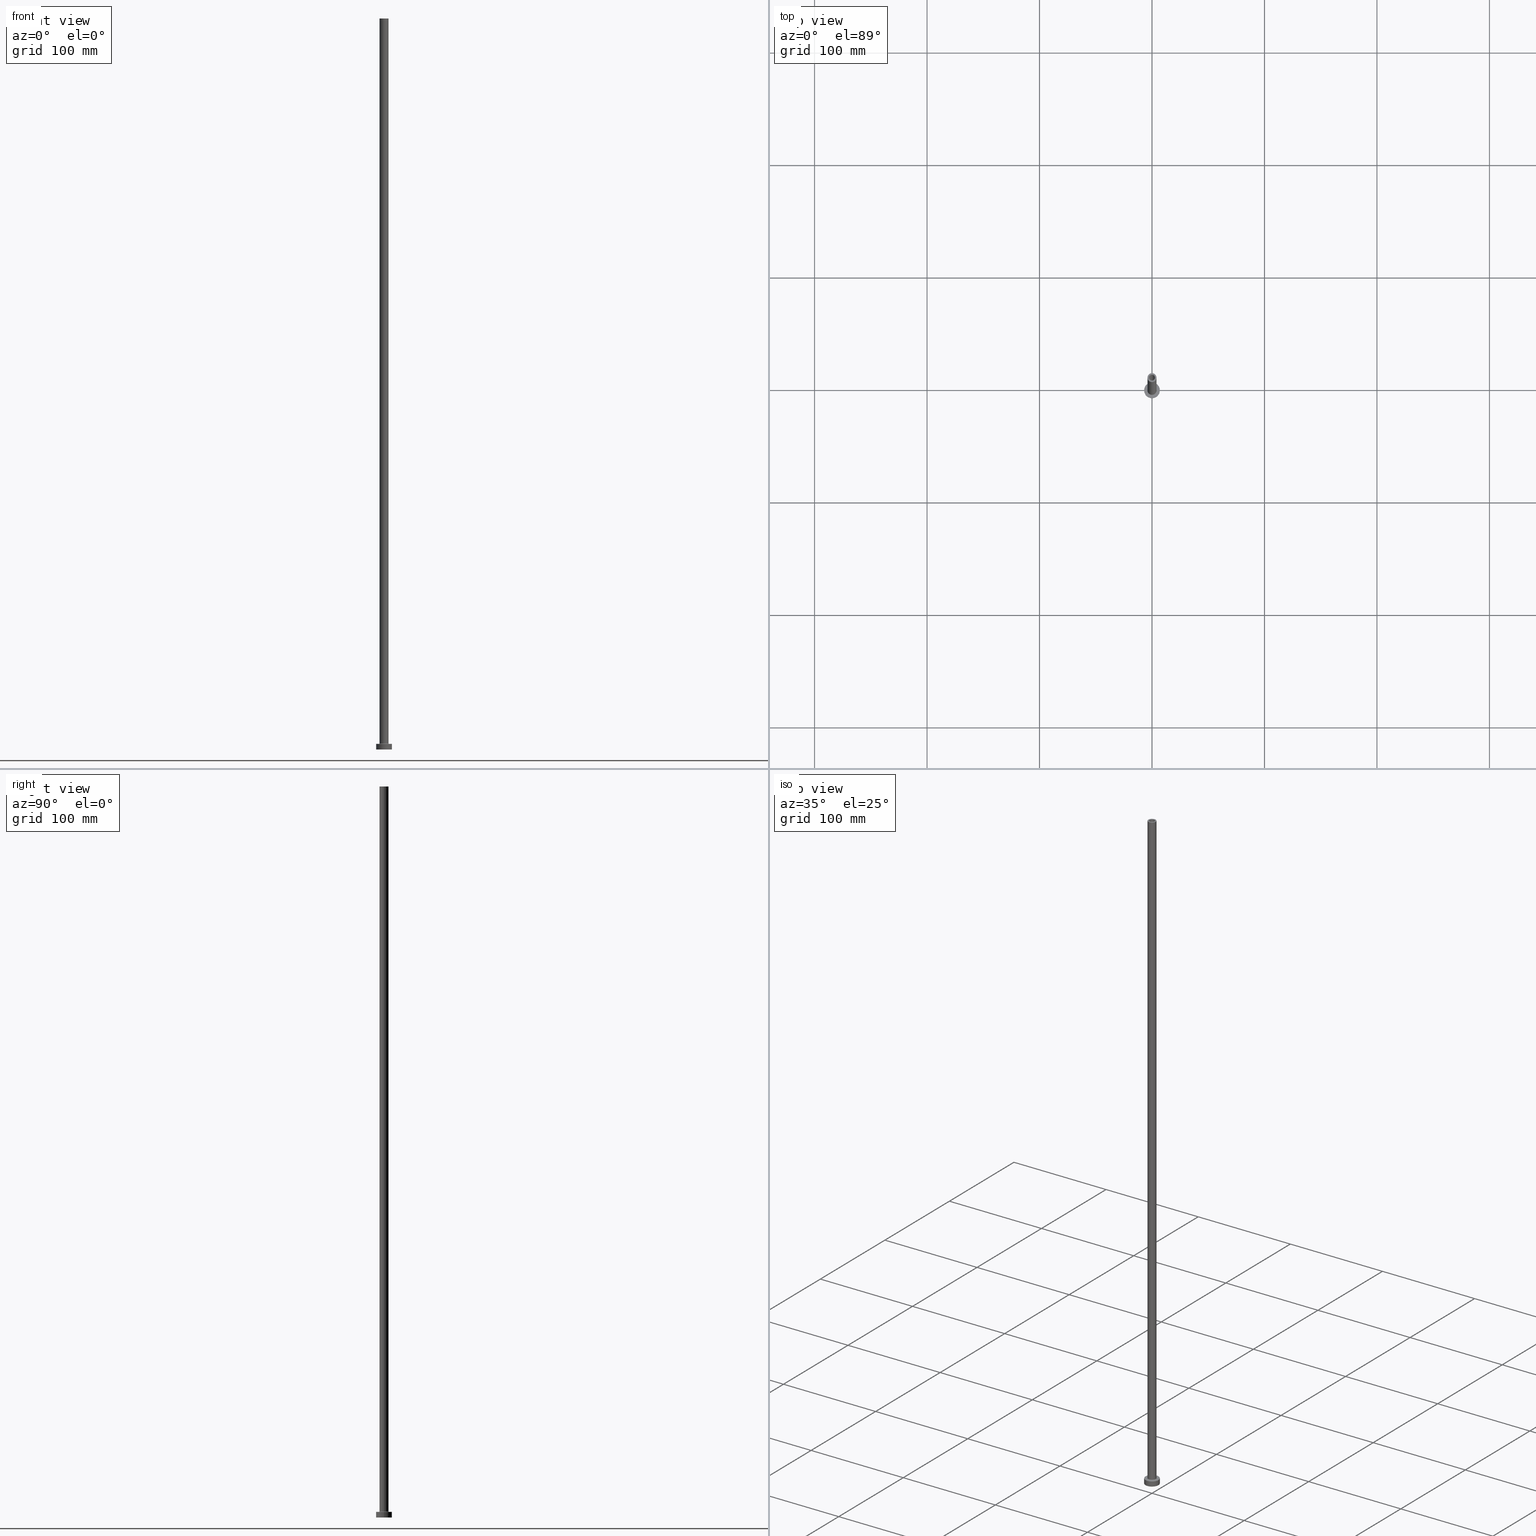
[diagram: canonical four-view strip — front | top / right | iso, engineering-drawing reading convention]
A machine part, canonical four-view strip (front | top / right | iso — engineering-drawing reading convention). The complete STEP part file that produces these views, byte-faithful:
ISO-10303-21;
HEADER;
FILE_DESCRIPTION (( 'STEP AP203' ),
    '1' );
FILE_NAME ('0d34.STEP',
    '2023-02-13T16:27:56',
    ( '' ),
    ( '' ),
    'SwSTEP 2.0',
    'SolidWorks 2019',
    '' );
FILE_SCHEMA (( 'CONFIG_CONTROL_DESIGN' ));
ENDSEC;

DATA;
#1 = CARTESIAN_POINT ( 'NONE',  ( -2.750000000000000000, 0.000000000000000000, 612.7781745930520856 ) ) ;
#2 = CARTESIAN_POINT ( 'NONE',  ( 0.000000000000000000, 0.000000000000000000, 0.000000000000000000 ) ) ;
#3 = EDGE_LOOP ( 'NONE', ( #67, #49, #71, #39 ) ) ;
#4 = CYLINDRICAL_SURFACE ( 'NONE', #251, 2.750000000000000000 ) ;
#5 = DIRECTION ( 'NONE',  ( -1.000000000000000000, 0.000000000000000000, 0.000000000000000000 ) ) ;
#6 = VERTEX_POINT ( 'NONE', #421 ) ;
#7 = COORDINATED_UNIVERSAL_TIME_OFFSET ( 1, 0, .AHEAD. ) ;
#8 = LINE ( 'NONE', #400, #143 ) ;
#9 = VECTOR ( 'NONE', #11, 1000.000000000000000 ) ;
#10 = ORIENTED_EDGE ( 'NONE', *, *, #42, .T. ) ;
#11 = DIRECTION ( 'NONE',  ( 0.000000000000000000, 0.000000000000000000, -1.000000000000000000 ) ) ;
#12 = EDGE_CURVE ( 'NONE', #130, #92, #194, .T. ) ;
#13 = VECTOR ( 'NONE', #218, 1000.000000000000000 ) ;
#14 = CARTESIAN_POINT ( 'NONE',  ( 0.000000000000000000, 0.000000000000000000, 605.0000000000000000 ) ) ;
#15 = EDGE_CURVE ( 'NONE', #445, #178, #241, .T. ) ;
#16 = ORIENTED_EDGE ( 'NONE', *, *, #75, .F. ) ;
#17 = AXIS2_PLACEMENT_3D ( 'NONE', #173, #30, #348 ) ;
#18 = EDGE_CURVE ( 'NONE', #458, #455, #175, .T. ) ;
#19 = DATE_AND_TIME ( #377, #116 ) ;
#20 = PLANE ( 'NONE',  #115 ) ;
#21 = AXIS2_PLACEMENT_3D ( 'NONE', #179, #289, #183 ) ;
#22 = ORIENTED_EDGE ( 'NONE', *, *, #55, .F. ) ;
#23 = FACE_BOUND ( 'NONE', #141, .T. ) ;
#24 = AXIS2_PLACEMENT_3D ( 'NONE', #109, #391, #101 ) ;
#25 = AXIS2_PLACEMENT_3D ( 'NONE', #226, #371, #441 ) ;
#26 = PRODUCT_DEFINITION_SHAPE ( 'NONE', 'NONE',  #357 ) ;
#27 = APPROVAL_DATE_TIME ( #44, #29 ) ;
#28 = FACE_BOUND ( 'NONE', #243, .T. ) ;
#29 = APPROVAL ( #203, 'NEUR�EN�' ) ;
#30 = DIRECTION ( 'NONE',  ( 0.000000000000000000, 0.000000000000000000, 1.000000000000000000 ) ) ;
#31 = DIRECTION ( 'NONE',  ( 1.000000000000000000, 0.000000000000000000, 0.000000000000000000 ) ) ;
#32 = ORIENTED_EDGE ( 'NONE', *, *, #397, .F. ) ;
#33 = LINE ( 'NONE', #1, #87 ) ;
#34 = DIRECTION ( 'NONE',  ( 0.000000000000000000, 0.000000000000000000, -1.000000000000000000 ) ) ;
#35 = ORIENTED_EDGE ( 'NONE', *, *, #166, .F. ) ;
#36 = AXIS2_PLACEMENT_3D ( 'NONE', #431, #361, #383 ) ;
#37 = CC_DESIGN_APPROVAL ( #29, ( #357 ) ) ;
#38 = FACE_BOUND ( 'NONE', #432, .T. ) ;
#39 = ORIENTED_EDGE ( 'NONE', *, *, #440, .T. ) ;
#40 = EDGE_LOOP ( 'NONE', ( #274, #123, #280, #266 ) ) ;
#41 = DIRECTION ( 'NONE',  ( 0.000000000000000000, 0.000000000000000000, 1.000000000000000000 ) ) ;
#42 = EDGE_CURVE ( 'NONE', #90, #153, #283, .T. ) ;
#43 = ORIENTED_EDGE ( 'NONE', *, *, #388, .T. ) ;
#44 = DATE_AND_TIME ( #436, #144 ) ;
#45 = ORIENTED_EDGE ( 'NONE', *, *, #324, .F. ) ;
#46 = DIRECTION ( 'NONE',  ( 1.000000000000000000, 0.000000000000000000, 0.000000000000000000 ) ) ;
#47 = CIRCLE ( 'NONE', #21, 4.500000000000000888 ) ;
#48 = AXIS2_PLACEMENT_3D ( 'NONE', #297, #368, #267 ) ;
#49 = ORIENTED_EDGE ( 'NONE', *, *, #306, .F. ) ;
#50 = ADVANCED_FACE ( 'NONE', ( #38, #236 ), #20, .F. ) ;
#51 = DIRECTION ( 'NONE',  ( 0.000000000000000000, 0.000000000000000000, -1.000000000000000000 ) ) ;
#52 = DIRECTION ( 'NONE',  ( -0.000000000000000000, -0.000000000000000000, -1.000000000000000000 ) ) ;
#53 = APPLICATION_PROTOCOL_DEFINITION ( 'international standard', 'config_control_design', 1994, #98 ) ;
#54 = DIRECTION ( 'NONE',  ( 0.000000000000000000, 0.000000000000000000, 1.000000000000000000 ) ) ;
#55 = EDGE_CURVE ( 'NONE', #373, #184, #154, .T. ) ;
#56 = VERTEX_POINT ( 'NONE', #213 ) ;
#57 = CARTESIAN_POINT ( 'NONE',  ( 0.000000000000000000, 0.000000000000000000, 0.000000000000000000 ) ) ;
#58 = ORIENTED_EDGE ( 'NONE', *, *, #18, .F. ) ;
#59 = AXIS2_PLACEMENT_3D ( 'NONE', #339, #52, #424 ) ;
#60 = AXIS2_PLACEMENT_3D ( 'NONE', #258, #399, #219 ) ;
#61 = CALENDAR_DATE ( 2023, 13, 2 ) ;
#62 = ADVANCED_FACE ( 'NONE', ( #152 ), #186, .F. ) ;
#63 = COORDINATED_UNIVERSAL_TIME_OFFSET ( 1, 0, .AHEAD. ) ;
#64 = CARTESIAN_POINT ( 'NONE',  ( -4.000000000000000000, 0.000000000000000000, 650.0000000000000000 ) ) ;
#65 = EDGE_CURVE ( 'NONE', #153, #90, #47, .T. ) ;
#66 = CIRCLE ( 'NONE', #384, 2.600000000000000089 ) ;
#67 = ORIENTED_EDGE ( 'NONE', *, *, #418, .F. ) ;
#68 = AXIS2_PLACEMENT_3D ( 'NONE', #57, #294, #435 ) ;
#69 = PERSON_AND_ORGANIZATION ( #376, #417 ) ;
#70 = DIRECTION ( 'NONE',  ( 0.000000000000000000, 0.000000000000000000, 1.000000000000000000 ) ) ;
#71 = ORIENTED_EDGE ( 'NONE', *, *, #262, .T. ) ;
#72 = ORIENTED_EDGE ( 'NONE', *, *, #97, .T. ) ;
#73 = TOROIDAL_SURFACE ( 'NONE', #132, 4.500000000000000888, 0.5000000000000000000 ) ;
#74 = DIRECTION ( 'NONE',  ( 1.000000000000000000, 0.000000000000000000, -0.000000000000000000 ) ) ;
#75 = EDGE_CURVE ( 'NONE', #318, #56, #234, .T. ) ;
#76 = EDGE_LOOP ( 'NONE', ( #428, #32 ) ) ;
#77 = LINE ( 'NONE', #215, #13 ) ;
#78 = DIRECTION ( 'NONE',  ( 1.000000000000000000, 0.000000000000000000, 0.000000000000000000 ) ) ;
#79 =( NAMED_UNIT ( * ) PLANE_ANGLE_UNIT ( ) SI_UNIT ( $, .RADIAN. ) );
#80 = CARTESIAN_POINT ( 'NONE',  ( 2.750000000000000000, 3.367778697655221012E-16, 605.0000000000000000 ) ) ;
#81 = VERTEX_POINT ( 'NONE', #456 ) ;
#82 = CARTESIAN_POINT ( 'NONE',  ( 4.000000000000000000, 4.898587196589411843E-16, 650.0000000000000000 ) ) ;
#83 = AXIS2_PLACEMENT_3D ( 'NONE', #103, #386, #172 ) ;
#84 = CARTESIAN_POINT ( 'NONE',  ( 4.000000000000000000, 4.898587196589411843E-16, 5.499999999999949374 ) ) ;
#85 = ORIENTED_EDGE ( 'NONE', *, *, #122, .F. ) ;
#86 = CARTESIAN_POINT ( 'NONE',  ( -7.000000000000000000, 0.000000000000000000, 5.000000000000000000 ) ) ;
#87 = VECTOR ( 'NONE', #147, 1000.000000000000000 ) ;
#88 = CIRCLE ( 'NONE', #60, 2.600000000000000089 ) ;
#89 =( GEOMETRIC_REPRESENTATION_CONTEXT ( 3 ) GLOBAL_UNCERTAINTY_ASSIGNED_CONTEXT ( ( #454 ) ) GLOBAL_UNIT_ASSIGNED_CONTEXT ( ( #343, #79, #260 ) ) REPRESENTATION_CONTEXT ( 'NONE', 'WORKASPACE' ) );
#90 = VERTEX_POINT ( 'NONE', #453 ) ;
#91 = ADVANCED_FACE ( 'NONE', ( #28, #177 ), #138, .F. ) ;
#92 = VERTEX_POINT ( 'NONE', #99 ) ;
#93 = AXIS2_PLACEMENT_3D ( 'NONE', #327, #285, #427 ) ;
#94 = LOCAL_TIME ( 17, 27, 56.00000000000000000, #387 ) ;
#95 = PERSON_AND_ORGANIZATION_ROLE ( 'classification_officer' ) ;
#96 = FACE_OUTER_BOUND ( 'NONE', #209, .T. ) ;
#97 = EDGE_CURVE ( 'NONE', #455, #458, #290, .T. ) ;
#98 = APPLICATION_CONTEXT ( 'configuration controlled 3d designs of mechanical parts and assemblies' ) ;
#99 = CARTESIAN_POINT ( 'NONE',  ( -7.000000000000000000, 0.000000000000000000, 5.000000000000000000 ) ) ;
#100 = DIRECTION ( 'NONE',  ( 1.000000000000000000, 0.000000000000000000, 0.000000000000000000 ) ) ;
#101 = DIRECTION ( 'NONE',  ( 1.000000000000000000, 0.000000000000000000, 0.000000000000000000 ) ) ;
#102 = ORIENTED_EDGE ( 'NONE', *, *, #75, .T. ) ;
#103 = CARTESIAN_POINT ( 'NONE',  ( 0.000000000000000000, 0.000000000000000000, 650.0000000000000000 ) ) ;
#104 = AXIS2_PLACEMENT_3D ( 'NONE', #338, #333, #430 ) ;
#105 = APPROVAL_ROLE ( '' ) ;
#106 = CARTESIAN_POINT ( 'NONE',  ( 0.000000000000000000, 0.000000000000000000, 650.0000000000000000 ) ) ;
#107 = CARTESIAN_POINT ( 'NONE',  ( 0.000000000000000000, 0.000000000000000000, 612.7781745930520856 ) ) ;
#108 = EDGE_LOOP ( 'NONE', ( #118, #323, #135, #447 ) ) ;
#109 = CARTESIAN_POINT ( 'NONE',  ( 0.000000000000000000, 0.000000000000000000, 605.0000000000000000 ) ) ;
#110 = CARTESIAN_POINT ( 'NONE',  ( 0.000000000000000000, 0.000000000000000000, 5.000000000000000000 ) ) ;
#111 = CARTESIAN_POINT ( 'NONE',  ( 0.000000000000000000, 0.000000000000000000, 605.0000000000000000 ) ) ;
#112 = ADVANCED_FACE ( 'NONE', ( #142 ), #4, .F. ) ;
#113 = EDGE_LOOP ( 'NONE', ( #245, #187, #126, #45 ) ) ;
#114 = CARTESIAN_POINT ( 'NONE',  ( 0.000000000000000000, 0.000000000000000000, 612.7781745930520856 ) ) ;
#115 = AXIS2_PLACEMENT_3D ( 'NONE', #169, #41, #74 ) ;
#116 = LOCAL_TIME ( 17, 27, 56.00000000000000000, #63 ) ;
#117 = DIRECTION ( 'NONE',  ( 0.000000000000000000, 0.000000000000000000, 1.000000000000000000 ) ) ;
#118 = ORIENTED_EDGE ( 'NONE', *, *, #97, .F. ) ;
#119 = ORIENTED_EDGE ( 'NONE', *, *, #306, .T. ) ;
#120 = DIRECTION ( 'NONE',  ( 1.000000000000000000, 0.000000000000000000, 0.000000000000000000 ) ) ;
#121 = ORIENTED_EDGE ( 'NONE', *, *, #157, .T. ) ;
#122 = EDGE_CURVE ( 'NONE', #300, #6, #33, .T. ) ;
#123 = ORIENTED_EDGE ( 'NONE', *, *, #281, .T. ) ;
#124 = ORIENTED_EDGE ( 'NONE', *, *, #225, .F. ) ;
#125 = EDGE_LOOP ( 'NONE', ( #238, #158, #248, #304 ) ) ;
#126 = ORIENTED_EDGE ( 'NONE', *, *, #18, .T. ) ;
#127 = CARTESIAN_POINT ( 'NONE',  ( -4.000000000000000000, 0.000000000000000000, 5.499999999999949374 ) ) ;
#128 = DIRECTION ( 'NONE',  ( 0.000000000000000000, 0.000000000000000000, 1.000000000000000000 ) ) ;
#129 = ADVANCED_FACE ( 'NONE', ( #282 ), #151, .T. ) ;
#130 = VERTEX_POINT ( 'NONE', #207 ) ;
#131 = CARTESIAN_POINT ( 'NONE',  ( 0.000000000000000000, 0.000000000000000000, 605.0000000000000000 ) ) ;
#132 = AXIS2_PLACEMENT_3D ( 'NONE', #159, #401, #329 ) ;
#133 = CARTESIAN_POINT ( 'NONE',  ( 7.000000000000000000, 8.572527594031473190E-16, 5.000000000000000000 ) ) ;
#134 = ADVANCED_FACE ( 'NONE', ( #396 ), #296, .F. ) ;
#135 = ORIENTED_EDGE ( 'NONE', *, *, #42, .F. ) ;
#136 = AXIS2_PLACEMENT_3D ( 'NONE', #322, #313, #139 ) ;
#137 = AXIS2_PLACEMENT_3D ( 'NONE', #224, #51, #406 ) ;
#138 = PLANE ( 'NONE',  #93 ) ;
#139 = DIRECTION ( 'NONE',  ( -1.000000000000000000, 1.224646799147351482E-16, 0.000000000000000000 ) ) ;
#140 = ADVANCED_FACE ( 'NONE', ( #96 ), #314, .T. ) ;
#141 = EDGE_LOOP ( 'NONE', ( #10, #198 ) ) ;
#142 = FACE_OUTER_BOUND ( 'NONE', #125, .T. ) ;
#143 = VECTOR ( 'NONE', #156, 1000.000000000000000 ) ;
#144 = LOCAL_TIME ( 17, 27, 56.00000000000000000, #7 ) ;
#145 = ORIENTED_EDGE ( 'NONE', *, *, #146, .F. ) ;
#146 = EDGE_CURVE ( 'NONE', #455, #153, #367, .T. ) ;
#147 = DIRECTION ( 'NONE',  ( 0.000000000000000000, 0.000000000000000000, -1.000000000000000000 ) ) ;
#148 = EDGE_LOOP ( 'NONE', ( #124, #379 ) ) ;
#149 = CARTESIAN_POINT ( 'NONE',  ( 0.000000000000000000, 0.000000000000000000, 5.499999999999949374 ) ) ;
#150 = EDGE_LOOP ( 'NONE', ( #102, #325 ) ) ;
#151 = CYLINDRICAL_SURFACE ( 'NONE', #83, 4.000000000000000000 ) ;
#152 = FACE_OUTER_BOUND ( 'NONE', #108, .T. ) ;
#153 = VERTEX_POINT ( 'NONE', #426 ) ;
#154 = CIRCLE ( 'NONE', #450, 7.000000000000000000 ) ;
#155 = APPROVAL_PERSON_ORGANIZATION ( #272, #336, #413 ) ;
#156 = DIRECTION ( 'NONE',  ( 0.000000000000000000, 0.000000000000000000, -1.000000000000000000 ) ) ;
#157 = EDGE_CURVE ( 'NONE', #178, #445, #420, .T. ) ;
#158 = ORIENTED_EDGE ( 'NONE', *, *, #397, .T. ) ;
#159 = CARTESIAN_POINT ( 'NONE',  ( 0.000000000000000000, 0.000000000000000000, 5.499999999999949374 ) ) ;
#160 = ORIENTED_EDGE ( 'NONE', *, *, #217, .T. ) ;
#161 = PLANE ( 'NONE',  #403 ) ;
#162 = AXIS2_PLACEMENT_3D ( 'NONE', #309, #277, #201 ) ;
#163 = AXIS2_PLACEMENT_3D ( 'NONE', #192, #341, #165 ) ;
#164 = ADVANCED_FACE ( 'NONE', ( #353 ), #356, .F. ) ;
#165 = DIRECTION ( 'NONE',  ( -1.000000000000000000, 0.000000000000000000, 0.000000000000000000 ) ) ;
#166 = EDGE_CURVE ( 'NONE', #6, #360, #408, .T. ) ;
#167 = CYLINDRICAL_SURFACE ( 'NONE', #163, 7.000000000000000000 ) ;
#168 = DATE_AND_TIME ( #61, #460 ) ;
#169 = CARTESIAN_POINT ( 'NONE',  ( 0.000000000000000000, 0.000000000000000000, 0.000000000000000000 ) ) ;
#170 = PRODUCT_RELATED_PRODUCT_CATEGORY ( 'detail', '', ( #188 ) ) ;
#171 = DIRECTION ( 'NONE',  ( 1.000000000000000000, 0.000000000000000000, 0.000000000000000000 ) ) ;
#172 = DIRECTION ( 'NONE',  ( -1.000000000000000000, 0.000000000000000000, 0.000000000000000000 ) ) ;
#173 = CARTESIAN_POINT ( 'NONE',  ( 0.000000000000000000, 0.000000000000000000, 5.000000000000000000 ) ) ;
#174 = ADVANCED_FACE ( 'NONE', ( #221 ), #73, .F. ) ;
#175 = CIRCLE ( 'NONE', #437, 4.000000000000000000 ) ;
#176 = CIRCLE ( 'NONE', #439, 2.750000000000000000 ) ;
#177 = FACE_OUTER_BOUND ( 'NONE', #76, .T. ) ;
#178 = VERTEX_POINT ( 'NONE', #369 ) ;
#179 = CARTESIAN_POINT ( 'NONE',  ( 0.000000000000000000, 0.000000000000000000, 5.000000000000000000 ) ) ;
#180 = VERTEX_POINT ( 'NONE', #80 ) ;
#181 = EDGE_CURVE ( 'NONE', #360, #6, #310, .T. ) ;
#182 = LINE ( 'NONE', #86, #222 ) ;
#183 = DIRECTION ( 'NONE',  ( 1.000000000000000000, 0.000000000000000000, 0.000000000000000000 ) ) ;
#184 = VERTEX_POINT ( 'NONE', #298 ) ;
#185 = PLANE ( 'NONE',  #104 ) ;
#186 = TOROIDAL_SURFACE ( 'NONE', #342, 4.500000000000000888, 0.5000000000000000000 ) ;
#187 = ORIENTED_EDGE ( 'NONE', *, *, #202, .T. ) ;
#188 = PRODUCT ( '0d34', '0d34', '', ( #212 ) ) ;
#189 = ORIENTED_EDGE ( 'NONE', *, *, #440, .F. ) ;
#190 = LINE ( 'NONE', #334, #9 ) ;
#191 = DIRECTION ( 'NONE',  ( 1.000000000000000000, 0.000000000000000000, -0.000000000000000000 ) ) ;
#192 = CARTESIAN_POINT ( 'NONE',  ( 0.000000000000000000, 0.000000000000000000, 5.000000000000000000 ) ) ;
#193 = ORIENTED_EDGE ( 'NONE', *, *, #55, .T. ) ;
#194 = CIRCLE ( 'NONE', #17, 7.000000000000000000 ) ;
#195 = EDGE_CURVE ( 'NONE', #180, #360, #190, .T. ) ;
#196 = ORIENTED_EDGE ( 'NONE', *, *, #407, .T. ) ;
#197 = DATE_AND_TIME ( #242, #94 ) ;
#198 = ORIENTED_EDGE ( 'NONE', *, *, #65, .T. ) ;
#199 = CARTESIAN_POINT ( 'NONE',  ( 7.000000000000000000, 8.572527594031473190E-16, 0.000000000000000000 ) ) ;
#200 = APPLICATION_PROTOCOL_DEFINITION ( 'international standard', 'config_control_design', 1994, #284 ) ;
#201 = DIRECTION ( 'NONE',  ( -1.000000000000000000, 0.000000000000000000, 0.000000000000000000 ) ) ;
#202 = EDGE_CURVE ( 'NONE', #56, #458, #256, .T. ) ;
#203 = APPROVAL_STATUS ( 'not_yet_approved' ) ;
#204 = AXIS2_PLACEMENT_3D ( 'NONE', #293, #433, #120 ) ;
#205 = CIRCLE ( 'NONE', #385, 2.750000000000000000 ) ;
#206 = DIRECTION ( 'NONE',  ( 0.000000000000000000, 0.000000000000000000, -1.000000000000000000 ) ) ;
#207 = CARTESIAN_POINT ( 'NONE',  ( 7.000000000000000000, 8.572527594031473190E-16, 5.000000000000000000 ) ) ;
#208 = DIRECTION ( 'NONE',  ( 1.000000000000000000, 0.000000000000000000, 0.000000000000000000 ) ) ;
#209 = EDGE_LOOP ( 'NONE', ( #233, #16, #257, #72 ) ) ;
#210 = CC_DESIGN_SECURITY_CLASSIFICATION ( #301, ( #394 ) ) ;
#211 = EDGE_LOOP ( 'NONE', ( #119, #398 ) ) ;
#212 = MECHANICAL_CONTEXT ( 'NONE', #284, 'mechanical' ) ;
#213 = CARTESIAN_POINT ( 'NONE',  ( 4.000000000000000000, 4.898587196589411843E-16, 650.0000000000000000 ) ) ;
#214 = ORIENTED_EDGE ( 'NONE', *, *, #181, .T. ) ;
#215 = CARTESIAN_POINT ( 'NONE',  ( -2.600000000000000089, 0.000000000000000000, 650.0000000000000000 ) ) ;
#216 = ORIENTED_EDGE ( 'NONE', *, *, #15, .T. ) ;
#217 = EDGE_CURVE ( 'NONE', #81, #178, #77, .T. ) ;
#218 = DIRECTION ( 'NONE',  ( 0.000000000000000000, 0.000000000000000000, -1.000000000000000000 ) ) ;
#219 = DIRECTION ( 'NONE',  ( 1.000000000000000000, 0.000000000000000000, 0.000000000000000000 ) ) ;
#220 = CARTESIAN_POINT ( 'NONE',  ( 0.000000000000000000, 0.000000000000000000, 650.0000000000000000 ) ) ;
#221 = FACE_OUTER_BOUND ( 'NONE', #438, .T. ) ;
#222 = VECTOR ( 'NONE', #227, 1000.000000000000000 ) ;
#223 = DIRECTION ( 'NONE',  ( 0.000000000000000000, 0.000000000000000000, 1.000000000000000000 ) ) ;
#224 = CARTESIAN_POINT ( 'NONE',  ( 0.000000000000000000, 0.000000000000000000, 650.0000000000000000 ) ) ;
#225 = EDGE_CURVE ( 'NONE', #81, #419, #66, .T. ) ;
#226 = CARTESIAN_POINT ( 'NONE',  ( 4.500000000000000888, 0.000000000000000000, 5.499999999999949374 ) ) ;
#227 = DIRECTION ( 'NONE',  ( -0.000000000000000000, -0.000000000000000000, -1.000000000000000000 ) ) ;
#228 = AXIS2_PLACEMENT_3D ( 'NONE', #317, #429, #208 ) ;
#229 = CLOSED_SHELL ( 'NONE', ( #449, #164, #62, #129, #302, #381, #364, #50, #140, #288, #174, #112, #91, #134 ) ) ;
#230 = APPROVAL ( #305, 'NEUR�EN�' ) ;
#231 = FACE_OUTER_BOUND ( 'NONE', #3, .T. ) ;
#232 = APPROVAL_STATUS ( 'not_yet_approved' ) ;
#233 = ORIENTED_EDGE ( 'NONE', *, *, #202, .F. ) ;
#234 = CIRCLE ( 'NONE', #36, 4.000000000000000000 ) ;
#235 = CC_DESIGN_DATE_AND_TIME_ASSIGNMENT ( #197, #415, ( #357 ) ) ;
#236 = FACE_OUTER_BOUND ( 'NONE', #319, .T. ) ;
#237 = PERSON_AND_ORGANIZATION_ROLE ( 'creator' ) ;
#238 = ORIENTED_EDGE ( 'NONE', *, *, #195, .F. ) ;
#239 = CARTESIAN_POINT ( 'NONE',  ( 2.750000000000000000, 3.367778697655221012E-16, 0.000000000000000000 ) ) ;
#240 = DIRECTION ( 'NONE',  ( 1.000000000000000000, 0.000000000000000000, 0.000000000000000000 ) ) ;
#241 = CIRCLE ( 'NONE', #24, 2.600000000000000089 ) ;
#242 = CALENDAR_DATE ( 2023, 13, 2 ) ;
#243 = EDGE_LOOP ( 'NONE', ( #121, #216 ) ) ;
#244 = CARTESIAN_POINT ( 'NONE',  ( 0.000000000000000000, 0.000000000000000000, 0.000000000000000000 ) ) ;
#245 = ORIENTED_EDGE ( 'NONE', *, *, #372, .F. ) ;
#246 = DIRECTION ( 'NONE',  ( 0.000000000000000000, 0.000000000000000000, 1.000000000000000000 ) ) ;
#247 = DIRECTION ( 'NONE',  ( 0.000000000000000000, 0.000000000000000000, 1.000000000000000000 ) ) ;
#248 = ORIENTED_EDGE ( 'NONE', *, *, #122, .T. ) ;
#249 = PERSON_AND_ORGANIZATION ( #376, #417 ) ;
#250 = DIRECTION ( 'NONE',  ( 0.000000000000000000, 0.000000000000000000, 1.000000000000000000 ) ) ;
#251 = AXIS2_PLACEMENT_3D ( 'NONE', #107, #206, #355 ) ;
#252 = CC_DESIGN_APPROVAL ( #230, ( #301 ) ) ;
#253 = CARTESIAN_POINT ( 'NONE',  ( 0.000000000000000000, 0.000000000000000000, 0.000000000000000000 ) ) ;
#254 = CC_DESIGN_PERSON_AND_ORGANIZATION_ASSIGNMENT ( #270, #382, ( #394 ) ) ;
#255 = ORIENTED_EDGE ( 'NONE', *, *, #442, .T. ) ;
#256 = LINE ( 'NONE', #82, #268 ) ;
#257 = ORIENTED_EDGE ( 'NONE', *, *, #324, .T. ) ;
#258 = CARTESIAN_POINT ( 'NONE',  ( 0.000000000000000000, 0.000000000000000000, 650.0000000000000000 ) ) ;
#259 = DIRECTION ( 'NONE',  ( 1.000000000000000000, 0.000000000000000000, 0.000000000000000000 ) ) ;
#260 =( NAMED_UNIT ( * ) SI_UNIT ( $, .STERADIAN. ) SOLID_ANGLE_UNIT ( ) );
#261 = DIRECTION ( 'NONE',  ( -0.000000000000000000, -0.000000000000000000, -1.000000000000000000 ) ) ;
#262 = EDGE_CURVE ( 'NONE', #92, #184, #182, .T. ) ;
#263 = VECTOR ( 'NONE', #269, 1000.000000000000000 ) ;
#264 = CARTESIAN_POINT ( 'NONE',  ( -2.750000000000000000, 0.000000000000000000, 605.0000000000000000 ) ) ;
#265 = DIRECTION ( 'NONE',  ( 1.000000000000000000, 0.000000000000000000, 0.000000000000000000 ) ) ;
#266 = ORIENTED_EDGE ( 'NONE', *, *, #217, .F. ) ;
#267 = DIRECTION ( 'NONE',  ( 1.000000000000000000, 0.000000000000000000, 0.000000000000000000 ) ) ;
#268 = VECTOR ( 'NONE', #395, 1000.000000000000000 ) ;
#269 = DIRECTION ( 'NONE',  ( -0.000000000000000000, -0.000000000000000000, -1.000000000000000000 ) ) ;
#270 = PERSON_AND_ORGANIZATION ( #376, #417 ) ;
#271 = ORIENTED_EDGE ( 'NONE', *, *, #262, .F. ) ;
#272 = PERSON_AND_ORGANIZATION ( #376, #417 ) ;
#273 = AXIS2_PLACEMENT_3D ( 'NONE', #114, #34, #392 ) ;
#274 = ORIENTED_EDGE ( 'NONE', *, *, #225, .T. ) ;
#275 = PERSON_AND_ORGANIZATION ( #376, #417 ) ;
#276 = LINE ( 'NONE', #64, #359 ) ;
#277 = DIRECTION ( 'NONE',  ( 0.000000000000000000, 0.000000000000000000, -1.000000000000000000 ) ) ;
#278 = PERSON_AND_ORGANIZATION ( #376, #417 ) ;
#279 = PERSON_AND_ORGANIZATION_ROLE ( 'design_owner' ) ;
#280 = ORIENTED_EDGE ( 'NONE', *, *, #157, .F. ) ;
#281 = EDGE_CURVE ( 'NONE', #419, #445, #8, .T. ) ;
#282 = FACE_OUTER_BOUND ( 'NONE', #113, .T. ) ;
#283 = CIRCLE ( 'NONE', #228, 4.500000000000000888 ) ;
#284 = APPLICATION_CONTEXT ( 'configuration controlled 3d designs of mechanical parts and assemblies' ) ;
#285 = DIRECTION ( 'NONE',  ( 0.000000000000000000, 0.000000000000000000, 1.000000000000000000 ) ) ;
#286 = ORIENTED_EDGE ( 'NONE', *, *, #65, .F. ) ;
#287 = EDGE_LOOP ( 'NONE', ( #196, #362, #214, #85 ) ) ;
#288 = ADVANCED_FACE ( 'NONE', ( #295, #335 ), #161, .T. ) ;
#289 = DIRECTION ( 'NONE',  ( -0.000000000000000000, -0.000000000000000000, -1.000000000000000000 ) ) ;
#290 = CIRCLE ( 'NONE', #358, 4.000000000000000000 ) ;
#291 = APPROVAL_PERSON_ORGANIZATION ( #405, #29, #105 ) ;
#292 = ORIENTED_EDGE ( 'NONE', *, *, #12, .F. ) ;
#293 = CARTESIAN_POINT ( 'NONE',  ( 0.000000000000000000, 0.000000000000000000, 0.000000000000000000 ) ) ;
#294 = DIRECTION ( 'NONE',  ( 0.000000000000000000, 0.000000000000000000, 1.000000000000000000 ) ) ;
#295 = FACE_BOUND ( 'NONE', #148, .T. ) ;
#296 = CYLINDRICAL_SURFACE ( 'NONE', #162, 2.600000000000000089 ) ;
#297 = CARTESIAN_POINT ( 'NONE',  ( 0.000000000000000000, 0.000000000000000000, 650.0000000000000000 ) ) ;
#298 = CARTESIAN_POINT ( 'NONE',  ( -7.000000000000000000, 0.000000000000000000, 0.000000000000000000 ) ) ;
#299 = CC_DESIGN_DATE_AND_TIME_ASSIGNMENT ( #168, #308, ( #301 ) ) ;
#300 = VERTEX_POINT ( 'NONE', #264 ) ;
#301 = SECURITY_CLASSIFICATION ( '', '', #452 ) ;
#302 = ADVANCED_FACE ( 'NONE', ( #404 ), #370, .T. ) ;
#303 = CIRCLE ( 'NONE', #25, 0.5000000000000004441 ) ;
#304 = ORIENTED_EDGE ( 'NONE', *, *, #166, .T. ) ;
#305 = APPROVAL_STATUS ( 'not_yet_approved' ) ;
#306 = EDGE_CURVE ( 'NONE', #92, #130, #459, .T. ) ;
#307 = CALENDAR_DATE ( 2023, 13, 2 ) ;
#308 = DATE_TIME_ROLE ( 'classification_date' ) ;
#309 = CARTESIAN_POINT ( 'NONE',  ( 0.000000000000000000, 0.000000000000000000, 650.0000000000000000 ) ) ;
#310 = CIRCLE ( 'NONE', #204, 2.750000000000000000 ) ;
#311 = APPROVAL_PERSON_ORGANIZATION ( #444, #230, #380 ) ;
#312 = COORDINATED_UNIVERSAL_TIME_OFFSET ( 1, 0, .AHEAD. ) ;
#313 = DIRECTION ( 'NONE',  ( 1.224646799147353207E-16, 1.000000000000000000, -0.000000000000000000 ) ) ;
#314 = CYLINDRICAL_SURFACE ( 'NONE', #347, 4.000000000000000000 ) ;
#315 = CC_DESIGN_PERSON_AND_ORGANIZATION_ASSIGNMENT ( #278, #378, ( #394 ) ) ;
#316 = DIRECTION ( 'NONE',  ( 0.000000000000000000, 0.000000000000000000, 1.000000000000000000 ) ) ;
#317 = CARTESIAN_POINT ( 'NONE',  ( 0.000000000000000000, 0.000000000000000000, 5.000000000000000000 ) ) ;
#318 = VERTEX_POINT ( 'NONE', #461 ) ;
#319 = EDGE_LOOP ( 'NONE', ( #189, #22 ) ) ;
#320 = AXIS2_PLACEMENT_3D ( 'NONE', #110, #246, #171 ) ;
#321 = CIRCLE ( 'NONE', #68, 7.000000000000000000 ) ;
#322 = CARTESIAN_POINT ( 'NONE',  ( -4.500000000000000888, 5.510910596163089556E-16, 5.499999999999949374 ) ) ;
#323 = ORIENTED_EDGE ( 'NONE', *, *, #146, .T. ) ;
#324 = EDGE_CURVE ( 'NONE', #318, #455, #276, .T. ) ;
#325 = ORIENTED_EDGE ( 'NONE', *, *, #372, .T. ) ;
#326 = MANIFOLD_SOLID_BREP ( 'Odebrat vysunut�m4', #229 ) ;
#327 = CARTESIAN_POINT ( 'NONE',  ( 0.000000000000000000, 0.000000000000000000, 605.0000000000000000 ) ) ;
#328 = CARTESIAN_POINT ( 'NONE',  ( 0.000000000000000000, 0.000000000000000000, 5.499999999999949374 ) ) ;
#329 = DIRECTION ( 'NONE',  ( 1.000000000000000000, 0.000000000000000000, 0.000000000000000000 ) ) ;
#330 = AXIS2_PLACEMENT_3D ( 'NONE', #2, #261, #365 ) ;
#331 = ORIENTED_EDGE ( 'NONE', *, *, #418, .T. ) ;
#332 = LOCAL_TIME ( 17, 27, 56.00000000000000000, #416 ) ;
#333 = DIRECTION ( 'NONE',  ( 0.000000000000000000, 0.000000000000000000, 1.000000000000000000 ) ) ;
#334 = CARTESIAN_POINT ( 'NONE',  ( 2.750000000000000000, 3.367778697655221012E-16, 612.7781745930520856 ) ) ;
#335 = FACE_OUTER_BOUND ( 'NONE', #150, .T. ) ;
#336 = APPROVAL ( #232, 'NEUR�EN�' ) ;
#337 = EDGE_LOOP ( 'NONE', ( #292, #331, #193, #271 ) ) ;
#338 = CARTESIAN_POINT ( 'NONE',  ( 0.000000000000000000, 0.000000000000000000, 5.000000000000000000 ) ) ;
#339 = CARTESIAN_POINT ( 'NONE',  ( 0.000000000000000000, 0.000000000000000000, 5.000000000000000000 ) ) ;
#340 = DATE_AND_TIME ( #307, #332 ) ;
#341 = DIRECTION ( 'NONE',  ( -0.000000000000000000, -0.000000000000000000, -1.000000000000000000 ) ) ;
#342 = AXIS2_PLACEMENT_3D ( 'NONE', #328, #117, #78 ) ;
#343 =( LENGTH_UNIT ( ) NAMED_UNIT ( * ) SI_UNIT ( .MILLI., .METRE. ) );
#344 = CC_DESIGN_PERSON_AND_ORGANIZATION_ASSIGNMENT ( #249, #279, ( #188 ) ) ;
#345 = DIRECTION ( 'NONE',  ( 1.000000000000000000, 0.000000000000000000, 0.000000000000000000 ) ) ;
#346 = CARTESIAN_POINT ( 'NONE',  ( 2.600000000000000089, 3.184081677783118191E-16, 605.0000000000000000 ) ) ;
#347 = AXIS2_PLACEMENT_3D ( 'NONE', #106, #457, #5 ) ;
#348 = DIRECTION ( 'NONE',  ( 1.000000000000000000, 0.000000000000000000, 0.000000000000000000 ) ) ;
#349 = APPROVAL_DATE_TIME ( #19, #230 ) ;
#350 = DIRECTION ( 'NONE',  ( -0.000000000000000000, -0.000000000000000000, -1.000000000000000000 ) ) ;
#351 = AXIS2_PLACEMENT_3D ( 'NONE', #111, #247, #100 ) ;
#352 = AXIS2_PLACEMENT_3D ( 'NONE', #244, #390, #434 ) ;
#353 = FACE_OUTER_BOUND ( 'NONE', #287, .T. ) ;
#354 = ADVANCED_BREP_SHAPE_REPRESENTATION ( '0d34', ( #326, #352 ), #89 ) ;
#355 = DIRECTION ( 'NONE',  ( -1.000000000000000000, 0.000000000000000000, 0.000000000000000000 ) ) ;
#356 = CYLINDRICAL_SURFACE ( 'NONE', #273, 2.750000000000000000 ) ;
#357 = PRODUCT_DEFINITION ( 'NEZN�M�', '', #394, #422 ) ;
#358 = AXIS2_PLACEMENT_3D ( 'NONE', #425, #316, #31 ) ;
#359 = VECTOR ( 'NONE', #350, 1000.000000000000000 ) ;
#360 = VERTEX_POINT ( 'NONE', #239 ) ;
#361 = DIRECTION ( 'NONE',  ( 0.000000000000000000, 0.000000000000000000, 1.000000000000000000 ) ) ;
#362 = ORIENTED_EDGE ( 'NONE', *, *, #195, .T. ) ;
#363 = FACE_OUTER_BOUND ( 'NONE', #211, .T. ) ;
#364 = ADVANCED_FACE ( 'NONE', ( #23, #363 ), #185, .T. ) ;
#365 = DIRECTION ( 'NONE',  ( 1.000000000000000000, 0.000000000000000000, 0.000000000000000000 ) ) ;
#366 = ORIENTED_EDGE ( 'NONE', *, *, #181, .F. ) ;
#367 = CIRCLE ( 'NONE', #136, 0.5000000000000004441 ) ;
#368 = DIRECTION ( 'NONE',  ( 0.000000000000000000, 0.000000000000000000, 1.000000000000000000 ) ) ;
#369 = CARTESIAN_POINT ( 'NONE',  ( -2.600000000000000089, 0.000000000000000000, 605.0000000000000000 ) ) ;
#370 = CYLINDRICAL_SURFACE ( 'NONE', #59, 7.000000000000000000 ) ;
#371 = DIRECTION ( 'NONE',  ( 0.000000000000000000, -1.000000000000000000, 0.000000000000000000 ) ) ;
#372 = EDGE_CURVE ( 'NONE', #56, #318, #451, .T. ) ;
#373 = VERTEX_POINT ( 'NONE', #199 ) ;
#374 = DIRECTION ( 'NONE',  ( 0.000000000000000000, 0.000000000000000000, 1.000000000000000000 ) ) ;
#375 = FACE_OUTER_BOUND ( 'NONE', #40, .T. ) ;
#376 = PERSON ( 'NEUR�EN�', 'NEUR�EN�', 'NEUR�EN�', ('NEUR�EN�'), ('NEUR�EN�'), ('NEUR�EN�') ) ;
#377 = CALENDAR_DATE ( 2023, 13, 2 ) ;
#378 = PERSON_AND_ORGANIZATION_ROLE ( 'design_supplier' ) ;
#379 = ORIENTED_EDGE ( 'NONE', *, *, #442, .F. ) ;
#380 = APPROVAL_ROLE ( '' ) ;
#381 = ADVANCED_FACE ( 'NONE', ( #231 ), #167, .T. ) ;
#382 = PERSON_AND_ORGANIZATION_ROLE ( 'creator' ) ;
#383 = DIRECTION ( 'NONE',  ( 1.000000000000000000, 0.000000000000000000, 0.000000000000000000 ) ) ;
#384 = AXIS2_PLACEMENT_3D ( 'NONE', #220, #374, #46 ) ;
#385 = AXIS2_PLACEMENT_3D ( 'NONE', #131, #54, #345 ) ;
#386 = DIRECTION ( 'NONE',  ( -0.000000000000000000, -0.000000000000000000, -1.000000000000000000 ) ) ;
#387 = COORDINATED_UNIVERSAL_TIME_OFFSET ( 1, 0, .AHEAD. ) ;
#388 = EDGE_CURVE ( 'NONE', #458, #90, #303, .T. ) ;
#389 = ORIENTED_EDGE ( 'NONE', *, *, #15, .F. ) ;
#390 = DIRECTION ( 'NONE',  ( 0.000000000000000000, 0.000000000000000000, 1.000000000000000000 ) ) ;
#391 = DIRECTION ( 'NONE',  ( 0.000000000000000000, 0.000000000000000000, 1.000000000000000000 ) ) ;
#392 = DIRECTION ( 'NONE',  ( -1.000000000000000000, 0.000000000000000000, 0.000000000000000000 ) ) ;
#393 = ORIENTED_EDGE ( 'NONE', *, *, #281, .F. ) ;
#394 = PRODUCT_DEFINITION_FORMATION_WITH_SPECIFIED_SOURCE ( 'LIBOVOLN�', '', #188, .NOT_KNOWN. ) ;
#395 = DIRECTION ( 'NONE',  ( -0.000000000000000000, -0.000000000000000000, -1.000000000000000000 ) ) ;
#396 = FACE_OUTER_BOUND ( 'NONE', #410, .T. ) ;
#397 = EDGE_CURVE ( 'NONE', #180, #300, #176, .T. ) ;
#398 = ORIENTED_EDGE ( 'NONE', *, *, #12, .T. ) ;
#399 = DIRECTION ( 'NONE',  ( 0.000000000000000000, 0.000000000000000000, 1.000000000000000000 ) ) ;
#400 = CARTESIAN_POINT ( 'NONE',  ( 2.600000000000000089, 3.184081677783118191E-16, 650.0000000000000000 ) ) ;
#401 = DIRECTION ( 'NONE',  ( 0.000000000000000000, 0.000000000000000000, 1.000000000000000000 ) ) ;
#402 = CARTESIAN_POINT ( 'NONE',  ( 0.000000000000000000, 0.000000000000000000, 650.0000000000000000 ) ) ;
#403 = AXIS2_PLACEMENT_3D ( 'NONE', #402, #223, #191 ) ;
#404 = FACE_OUTER_BOUND ( 'NONE', #337, .T. ) ;
#405 = PERSON_AND_ORGANIZATION ( #376, #417 ) ;
#406 = DIRECTION ( 'NONE',  ( -1.000000000000000000, 0.000000000000000000, 0.000000000000000000 ) ) ;
#407 = EDGE_CURVE ( 'NONE', #300, #180, #205, .T. ) ;
#408 = CIRCLE ( 'NONE', #330, 2.750000000000000000 ) ;
#409 = CC_DESIGN_APPROVAL ( #336, ( #394 ) ) ;
#410 = EDGE_LOOP ( 'NONE', ( #393, #255, #160, #389 ) ) ;
#411 = CC_DESIGN_PERSON_AND_ORGANIZATION_ASSIGNMENT ( #69, #237, ( #357 ) ) ;
#412 = CARTESIAN_POINT ( 'NONE',  ( 2.600000000000000089, 3.184081677783118191E-16, 650.0000000000000000 ) ) ;
#413 = APPROVAL_ROLE ( '' ) ;
#414 = CYLINDRICAL_SURFACE ( 'NONE', #137, 2.600000000000000089 ) ;
#415 = DATE_TIME_ROLE ( 'creation_date' ) ;
#416 = COORDINATED_UNIVERSAL_TIME_OFFSET ( 1, 0, .AHEAD. ) ;
#417 = ORGANIZATION ( 'NEUR�EN�', 'NEUR�EN�', '' ) ;
#418 = EDGE_CURVE ( 'NONE', #130, #373, #443, .T. ) ;
#419 = VERTEX_POINT ( 'NONE', #412 ) ;
#420 = CIRCLE ( 'NONE', #351, 2.600000000000000089 ) ;
#421 = CARTESIAN_POINT ( 'NONE',  ( -2.750000000000000000, 0.000000000000000000, 0.000000000000000000 ) ) ;
#422 = DESIGN_CONTEXT ( 'detailed design', #98, 'design' ) ;
#423 = CC_DESIGN_PERSON_AND_ORGANIZATION_ASSIGNMENT ( #275, #95, ( #301 ) ) ;
#424 = DIRECTION ( 'NONE',  ( -1.000000000000000000, 0.000000000000000000, 0.000000000000000000 ) ) ;
#425 = CARTESIAN_POINT ( 'NONE',  ( 0.000000000000000000, 0.000000000000000000, 5.499999999999949374 ) ) ;
#426 = CARTESIAN_POINT ( 'NONE',  ( -4.500000000000000888, 5.510910596163088569E-16, 4.999999999999975131 ) ) ;
#427 = DIRECTION ( 'NONE',  ( 1.000000000000000000, 0.000000000000000000, -0.000000000000000000 ) ) ;
#428 = ORIENTED_EDGE ( 'NONE', *, *, #407, .F. ) ;
#429 = DIRECTION ( 'NONE',  ( -0.000000000000000000, -0.000000000000000000, -1.000000000000000000 ) ) ;
#430 = DIRECTION ( 'NONE',  ( 1.000000000000000000, 0.000000000000000000, -0.000000000000000000 ) ) ;
#431 = CARTESIAN_POINT ( 'NONE',  ( 0.000000000000000000, 0.000000000000000000, 650.0000000000000000 ) ) ;
#432 = EDGE_LOOP ( 'NONE', ( #35, #366 ) ) ;
#433 = DIRECTION ( 'NONE',  ( -0.000000000000000000, -0.000000000000000000, -1.000000000000000000 ) ) ;
#434 = DIRECTION ( 'NONE',  ( 1.000000000000000000, 0.000000000000000000, 0.000000000000000000 ) ) ;
#435 = DIRECTION ( 'NONE',  ( 1.000000000000000000, 0.000000000000000000, 0.000000000000000000 ) ) ;
#436 = CALENDAR_DATE ( 2023, 13, 2 ) ;
#437 = AXIS2_PLACEMENT_3D ( 'NONE', #149, #70, #240 ) ;
#438 = EDGE_LOOP ( 'NONE', ( #145, #58, #43, #286 ) ) ;
#439 = AXIS2_PLACEMENT_3D ( 'NONE', #14, #128, #265 ) ;
#440 = EDGE_CURVE ( 'NONE', #184, #373, #321, .T. ) ;
#441 = DIRECTION ( 'NONE',  ( 0.000000000000000000, 0.000000000000000000, -1.000000000000000000 ) ) ;
#442 = EDGE_CURVE ( 'NONE', #419, #81, #88, .T. ) ;
#443 = LINE ( 'NONE', #133, #263 ) ;
#444 = PERSON_AND_ORGANIZATION ( #376, #417 ) ;
#445 = VERTEX_POINT ( 'NONE', #346 ) ;
#446 = APPROVAL_DATE_TIME ( #340, #336 ) ;
#447 = ORIENTED_EDGE ( 'NONE', *, *, #388, .F. ) ;
#448 = SHAPE_DEFINITION_REPRESENTATION ( #26, #354 ) ;
#449 = ADVANCED_FACE ( 'NONE', ( #375 ), #414, .F. ) ;
#450 = AXIS2_PLACEMENT_3D ( 'NONE', #253, #250, #259 ) ;
#451 = CIRCLE ( 'NONE', #48, 4.000000000000000000 ) ;
#452 = SECURITY_CLASSIFICATION_LEVEL ( 'unclassified' ) ;
#453 = CARTESIAN_POINT ( 'NONE',  ( 4.500000000000000888, 0.000000000000000000, 4.999999999999975131 ) ) ;
#454 = UNCERTAINTY_MEASURE_WITH_UNIT (LENGTH_MEASURE( 1.000000000000000082E-05 ), #343, 'distance_accuracy_value', 'NONE');
#455 = VERTEX_POINT ( 'NONE', #127 ) ;
#456 = CARTESIAN_POINT ( 'NONE',  ( -2.600000000000000089, 0.000000000000000000, 650.0000000000000000 ) ) ;
#457 = DIRECTION ( 'NONE',  ( -0.000000000000000000, -0.000000000000000000, -1.000000000000000000 ) ) ;
#458 = VERTEX_POINT ( 'NONE', #84 ) ;
#459 = CIRCLE ( 'NONE', #320, 7.000000000000000000 ) ;
#460 = LOCAL_TIME ( 17, 27, 56.00000000000000000, #312 ) ;
#461 = CARTESIAN_POINT ( 'NONE',  ( -4.000000000000000000, 0.000000000000000000, 650.0000000000000000 ) ) ;
ENDSEC;
END-ISO-10303-21;
